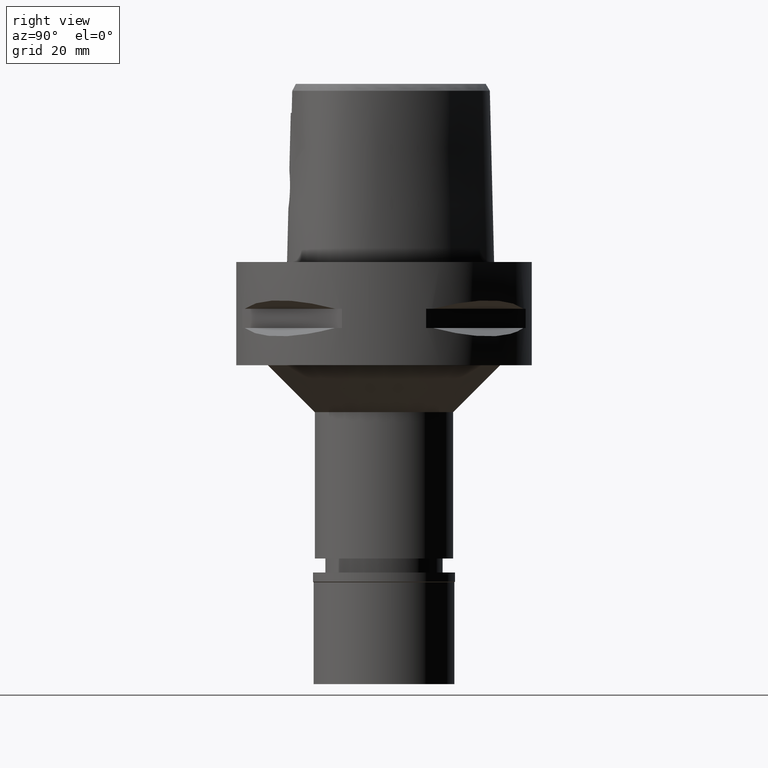
[diagram: clean part render]
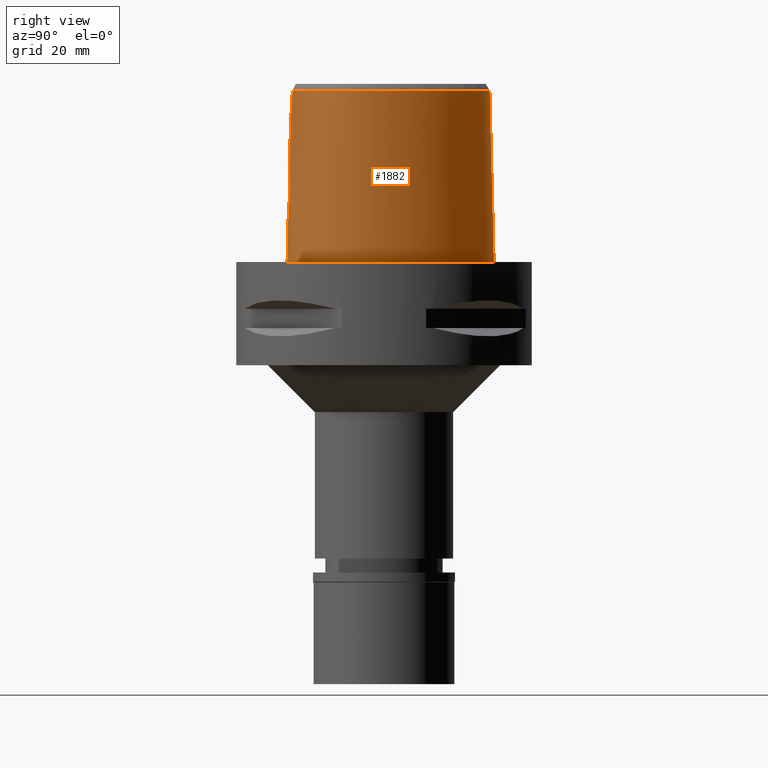
[diagram: same view with one face highlighted and labeled with its STEP entity id]
A machine part, right view. The second image highlights one B-rep face of the part: STEP entity #1882.
In plain terms, the highlighted face is a freeform B-spline surface patch.
Its self-contained STEP definition (entity closure, byte-faithful):
#4 = CARTESIAN_POINT ( 'NONE',  ( 3.204380528829199992, -20.20342866966900175, 13.01967623825819587 ) ) ;
#29 = CARTESIAN_POINT ( 'NONE',  ( 2.482490079998456167, -20.11938436469119651, 18.70275315662660276 ) ) ;
#35 = CARTESIAN_POINT ( 'NONE',  ( 2.438150600518000033, 22.68791637927999716, 24.59140306685000255 ) ) ;
#44 = CARTESIAN_POINT ( 'NONE',  ( -1.411580633884000040E-12, -20.38876923348000147, 11.44999999999999929 ) ) ;
#58 = CARTESIAN_POINT ( 'NONE',  ( 16.38077685470000233, -14.94316451347000019, 37.25232345770000109 ) ) ;
#71 = CARTESIAN_POINT ( 'NONE',  ( 3.772002913838033322, -20.04673383880903259, 16.97478929127804648 ) ) ;
#78 = CARTESIAN_POINT ( 'NONE',  ( 4.987110664503999757, 22.24795279833000095, 11.93048267600000223 ) ) ;
#92 = ORIENTED_EDGE ( 'NONE', *, *, #996, .F. ) ;
#93 = CARTESIAN_POINT ( 'NONE',  ( 3.276010424630875661, -20.07465546777150323, 17.88573059561239020 ) ) ;
#98 = CARTESIAN_POINT ( 'NONE',  ( 2.568271205958999825, 23.31126238477000001, -0.7304377148568999001 ) ) ;
#114 = CARTESIAN_POINT ( 'NONE',  ( 6.341471020853785667, -20.29812500914677642, -3.695627865145031943E-07 ) ) ;
#119 = CARTESIAN_POINT ( 'NONE',  ( 17.80867307355999785, 10.28184208128000066, 11.93048267600000223 ) ) ;
#140 = CARTESIAN_POINT ( 'NONE',  ( 14.40795639668043293, 15.64093750599779575, -3.695627865145031943E-07 ) ) ;
#144 = B_SPLINE_CURVE_WITH_KNOTS ( 'NONE', 3,
 ( #3553, #1573, #114, #1268, #2326, #4337, #896, #3852, #414, #971, #3288, #4386, #4782, #3636, #2848, #1772, #140, #1721, #4831, #2921, #2496, #4463, #1391 ),
 .UNSPECIFIED., .F., .F.,
 ( 4, 1, 1, 1, 1, 1, 1, 1, 1, 1, 1, 1, 1, 1, 1, 1, 1, 1, 1, 1, 4 ),
 ( 0.0000000000000000000, 0.08333333333344000726, 0.1666666666668000230, 0.2083333333333000081, 0.2500000000000000000, 0.2916666666666999919, 0.3125000000000000000, 0.3333333333333000081, 0.3541666666666999919, 0.3750000000000000000, 0.4166666666666000163, 0.4583333333332000326, 0.4999999999998999689, 0.5833333333332000326, 0.6666666666664999852, 0.7499999999998000488, 0.8333333333329999704, 0.8749999999997000177, 0.9166666666664000651, 0.9583333333329999704, 1.000000000000000000 ),
 .UNSPECIFIED. ) ;
#190 = CARTESIAN_POINT ( 'NONE',  ( -0.6718836833495001049, -20.05378849038999789, 24.59140306685000255 ) ) ;
#209 = CARTESIAN_POINT ( 'NONE',  ( -1.411580633884000040E-12, -20.38876923348000147, 11.44999999999999929 ) ) ;
#267 = B_SPLINE_CURVE_WITH_KNOTS ( 'NONE', 3,
 ( #1458, #499, #4378, #676 ),
 .UNSPECIFIED., .F., .F.,
 ( 4, 4 ),
 ( 0.0000000000000000000, 1.000000000000000000 ),
 .UNSPECIFIED. ) ;
#272 = CARTESIAN_POINT ( 'NONE',  ( 7.300578979384003020, -19.07170738130898613, 36.52186680739954028 ) ) ;
#304 = CARTESIAN_POINT ( 'NONE',  ( 1.886855603316999863, -20.71358919628000095, -0.7304377148568999001 ) ) ;
#314 = CARTESIAN_POINT ( 'NONE',  ( 4.467522181836240946, -19.48130276147388429, 36.52186680739954028 ) ) ;
#316 = EDGE_CURVE ( 'NONE', #1640, #482, #4794, .T. ) ;
#325 = CARTESIAN_POINT ( 'NONE',  ( 11.13012655322999933, -18.61140115403000195, 11.93048267600000223 ) ) ;
#339 = CARTESIAN_POINT ( 'NONE',  ( 17.90324024157425242, -13.53935104436231995, 36.52186680739954028 ) ) ;
#353 = DIRECTION ( 'NONE',  ( 2.016561690093959446E-12, 0.02499051290953949525, -0.9996876883629797206 ) ) ;
#370 = CARTESIAN_POINT ( 'NONE',  ( 4.000289648608512216, -20.07462390177899181, 14.85367509720603429 ) ) ;
#390 = CARTESIAN_POINT ( 'NONE',  ( 3.924098445672089319, -20.09318824069449505, 14.46358116592851850 ) ) ;
#399 = CARTESIAN_POINT ( 'NONE',  ( 18.08416038393999870, 10.44089487258000126, -0.7304377148568999001 ) ) ;
#414 = CARTESIAN_POINT ( 'NONE',  ( 20.34961799358084988, -11.74885742649931508, -3.695627865145031943E-07 ) ) ;
#422 = CARTESIAN_POINT ( 'NONE',  ( 10.14358067585999912, 18.45723408181999758, 37.25232345770000109 ) ) ;
#434 = CARTESIAN_POINT ( 'NONE',  ( 1.588457255229814180, -20.15839637585791877, 19.22566321224448416 ) ) ;
#443 = CARTESIAN_POINT ( 'NONE',  ( 19.54161170896999877, -11.28235477880000026, 37.25232345770000109 ) ) ;
#460 = CARTESIAN_POINT ( 'NONE',  ( 1.863557807161286828, -20.14821282482470011, 19.09641026843805278 ) ) ;
#467 = CARTESIAN_POINT ( 'NONE',  ( 16.97022731164999954, -15.69280483184000019, -0.7304377148568999001 ) ) ;
#482 = VERTEX_POINT ( 'NONE', #1934 ) ;
#489 = CARTESIAN_POINT ( 'NONE',  ( 21.99640701682000099, -0.2778990160719000402, -0.7304377148568999001 ) ) ;
#499 = CARTESIAN_POINT ( 'NONE',  ( 6.819703739716780851E-09, -19.98212988583101790, 27.71666688228259545 ) ) ;
#505 = CARTESIAN_POINT ( 'NONE',  ( 2.929828485618464207, -20.09487517444373594, 18.29630053273145052 ) ) ;
#535 = CARTESIAN_POINT ( 'NONE',  ( -0.6642815268289000707, 22.52377636018999851, 37.25232345770000109 ) ) ;
#562 = CARTESIAN_POINT ( 'NONE',  ( 0.5662264544665999155, 22.56729406896000256, 37.25232345770000109 ) ) ;
#592 = ORIENTED_EDGE ( 'NONE', *, *, #316, .F. ) ;
#639 = VECTOR ( 'NONE', #353, 1000.000000000000227 ) ;
#642 = CARTESIAN_POINT ( 'NONE',  ( 17.27359236348961247, 9.972912859139581698, 36.52186680739954028 ) ) ;
#676 = CARTESIAN_POINT ( 'NONE',  ( 0.0000000000000000000, -20.18628283968999781, 19.55000000000000071 ) ) ;
#698 = CARTESIAN_POINT ( 'NONE',  ( 14.52531262942999923, -16.95413747594999876, 11.93048267600000223 ) ) ;
#714 = CARTESIAN_POINT ( 'NONE',  ( 2.708222432252187062, -20.25839048008090160, 12.48843741727822376 ) ) ;
#740 = CARTESIAN_POINT ( 'NONE',  ( 2.751430606198253859, -20.25407344183640390, 12.52765276651590476 ) ) ;
#765 = CARTESIAN_POINT ( 'NONE',  ( 1.219179954272867628, -20.36299664601863668, 11.63727686740026002 ) ) ;
#776 = CARTESIAN_POINT ( 'NONE',  ( 21.57281239348000312, -9.001246195438000086, -0.7304377148568999001 ) ) ;
#801 = CARTESIAN_POINT ( 'NONE',  ( 7.259695423866000752, 20.78233562319000072, 24.59140306685000255 ) ) ;
#810 = VERTEX_POINT ( 'NONE', #2453 ) ;
#815 = CARTESIAN_POINT ( 'NONE',  ( 3.752221579586510813, -20.04764004981287329, 17.02426222420925228 ) ) ;
#826 = CARTESIAN_POINT ( 'NONE',  ( 18.58171406651000268, -14.18198046610999974, -0.7304377148568999001 ) ) ;
#841 = CARTESIAN_POINT ( 'NONE',  ( 0.0000000000000000000, -20.18628283968999781, 19.55000000000000071 ) ) ;
#844 = CARTESIAN_POINT ( 'NONE',  ( 3.793487456260480339, -20.04579046468114001, 16.91914858962802271 ) ) ;
#855 = CARTESIAN_POINT ( 'NONE',  ( 20.09084473359000000, -11.59945461460999994, 11.93048267600000223 ) ) ;
#873 = CARTESIAN_POINT ( 'NONE',  ( 3.865290333869318751, -20.04312016237826199, 16.71101165479720407 ) ) ;
#879 = ORIENTED_EDGE ( 'NONE', *, *, #1075, .T. ) ;
#880 = CARTESIAN_POINT ( 'NONE',  ( 21.94536977913000442, -4.102220499286000077, 11.93048267600000223 ) ) ;
#896 = CARTESIAN_POINT ( 'NONE',  ( 18.56841065814660396, -14.16937988918312996, -3.695627865145031943E-07 ) ) ;
#954 = CARTESIAN_POINT ( 'NONE',  ( 0.6155340740863999294, 23.51883497843000015, -0.7304377148568999001 ) ) ;
#971 = CARTESIAN_POINT ( 'NONE',  ( 20.93173253057206296, -10.60431641000839242, -3.695627865145031943E-07 ) ) ;
#977 = CARTESIAN_POINT ( 'NONE',  ( 0.5826623276731999201, 22.88447437210999880, 24.59140306685000255 ) ) ;
#996 = EDGE_CURVE ( 'NONE', #2681, #4719, #2357, .T. ) ;
#1029 = CARTESIAN_POINT ( 'NONE',  ( 20.09619608769159527, -10.23243839430229229, 36.52186680739954028 ) ) ;
#1050 = CARTESIAN_POINT ( 'NONE',  ( 10.91891095221053831, -18.03046396093136750, 36.52186680739954028 ) ) ;
#1075 = EDGE_CURVE ( 'NONE', #2276, #482, #144, .T. ) ;
#1079 = CARTESIAN_POINT ( 'NONE',  ( 6.344715576854000005, -20.31619965053999621, -0.7304377148568999001 ) ) ;
#1097 = CARTESIAN_POINT ( 'NONE',  ( 10.15538781006528701, 18.47129526702435953, 36.52186680739954028 ) ) ;
#1101 = CARTESIAN_POINT ( 'NONE',  ( 1.507678243694325237, -20.34923448701094983, 11.74107993125595861 ) ) ;
#1125 = CARTESIAN_POINT ( 'NONE',  ( 2.563992983004771187, -20.27228692714113478, 12.36410966514544185 ) ) ;
#1178 = CARTESIAN_POINT ( 'NONE',  ( 16.77374382599999691, -15.44292472572000108, 11.93048267600000223 ) ) ;
#1186 = CARTESIAN_POINT ( 'NONE',  ( -1.574539081985000086E-11, 22.56201468012000078, 36.52186680743999858 ) ) ;
#1192 = CARTESIAN_POINT ( 'NONE',  ( 2.787072456617037286, -20.10307282706192922, 18.44153223697248123 ) ) ;
#1201 = CARTESIAN_POINT ( 'NONE',  ( 17.25769845279999970, 9.963736498688000154, 37.25232345770000109 ) ) ;
#1224 = CARTESIAN_POINT ( 'NONE',  ( 20.16779732256000202, 4.447573638724000133, 24.59140306685000255 ) ) ;
#1243 = CARTESIAN_POINT ( 'NONE',  ( 0.0000000000000000000, -20.18628283968999781, 19.55000000000000071 ) ) ;
#1252 = CARTESIAN_POINT ( 'NONE',  ( 18.89485275315999857, -12.27684371510999917, 37.25232345770000109 ) ) ;
#1268 = CARTESIAN_POINT ( 'NONE',  ( 11.23259757045032536, -18.89324219622309187, -3.695627865145031943E-07 ) ) ;
#1300 = CARTESIAN_POINT ( 'NONE',  ( -0.4558512669279000118, 22.85344969972999607, 24.59140306685000255 ) ) ;
#1390 = EDGE_LOOP ( 'NONE', ( #592, #4781, #4047, #3269, #4688, #92, #2529, #879 ) ) ;
#1391 = CARTESIAN_POINT ( 'NONE',  ( 5.792621513459000158E-11, 23.47499999999000053, 1.460313351723999876E-13 ) ) ;
#1392 = CARTESIAN_POINT ( 'NONE',  ( 21.07429999882477745, -0.4408303635841203105, 36.52186680739954028 ) ) ;
#1426 = CARTESIAN_POINT ( 'NONE',  ( 3.035387624246396410, -20.22355932729745120, 12.81551075487858427 ) ) ;
#1451 = CARTESIAN_POINT ( 'NONE',  ( 4.047716646638882310, -20.05620397617477835, 15.36054662048689501 ) ) ;
#1458 = CARTESIAN_POINT ( 'NONE',  ( 2.041042029990999821E-08, -19.88004246002000031, 31.80000004972000127 ) ) ;
#1470 = CARTESIAN_POINT ( 'NONE',  ( 14.22011350745947134, -16.41829354688557530, 36.52186680739954028 ) ) ;
#1499 = CARTESIAN_POINT ( 'NONE',  ( 1.025649431176437920, -20.37072842225704150, 11.57971145393413259 ) ) ;
#1527 = CARTESIAN_POINT ( 'NONE',  ( 4.049374801663143231, -20.05444308311688317, 15.42240481850830847 ) ) ;
#1549 = CARTESIAN_POINT ( 'NONE',  ( 1.773269403376233067, -20.15175129702638657, 19.14226150414744154 ) ) ;
#1555 = CARTESIAN_POINT ( 'NONE',  ( 21.44619293463999909, -6.759806551089000415, 24.59140306685000255 ) ) ;
#1573 = CARTESIAN_POINT ( 'NONE',  ( 2.113823673616215260, -20.67500000923871895, -3.695627865145031943E-07 ) ) ;
#1581 = CARTESIAN_POINT ( 'NONE',  ( 19.81622822127999939, -11.44090469670999966, 24.59140306685000255 ) ) ;
#1595 = CARTESIAN_POINT ( 'NONE',  ( 3.016396958670749306, -20.08986764020522742, 18.20283621523593354 ) ) ;
#1604 = CARTESIAN_POINT ( 'NONE',  ( 13.69241970256000052, 15.03666384205000206, 37.25232345770000109 ) ) ;
#1621 = CARTESIAN_POINT ( 'NONE',  ( 3.140334829463161448, -20.08263654562674105, 18.05854662907350061 ) ) ;
#1627 = CARTESIAN_POINT ( 'NONE',  ( 2.503210903238000107, 22.99958938203000258, 11.93048267600000223 ) ) ;
#1640 = VERTEX_POINT ( 'NONE', #1186 ) ;
#1644 = CARTESIAN_POINT ( 'NONE',  ( 4.050986462135865551, -20.04628891732286178, 15.73876305543741871 ) ) ;
#1645 = B_SPLINE_CURVE_WITH_KNOTS ( 'NONE', 3,
 ( #3687, #4911, #1773, #3711, #3315, #1097, #4832, #642, #2244, #1392, #2923, #2952, #4464, #1029, #2178, #3733, #339, #4136, #1470, #1050, #272, #314, #1798 ),
 .UNSPECIFIED., .F., .F.,
 ( 4, 1, 1, 1, 1, 1, 1, 1, 1, 1, 1, 1, 1, 1, 1, 1, 1, 1, 1, 1, 4 ),
 ( 0.0000000000000000000, 0.04382683003322287996, 0.08765366006602488824, 0.1314804900989322289, 0.1753073201318395835, 0.2629609801974437389, 0.3506146402631531989, 0.4382683003288625478, 0.5259219603945720634, 0.5697487904274792792, 0.6135756204602813568, 0.6574024504930835455, 0.6793158655094845289, 0.7012292805259908723, 0.7231426955423918557, 0.7450561105587929500, 0.7888829405917002768, 0.8327097706246076037, 0.8765366006573045432, 0.9641902607230768973, 1.000000000000000000 ),
 .UNSPECIFIED. ) ;
#1652 = CARTESIAN_POINT ( 'NONE',  ( 21.68301100826999672, -0.3332744041582000327, 11.93048267600000223 ) ) ;
#1689 = CARTESIAN_POINT ( 'NONE',  ( -0.6840631436433000090, -20.68668116479000219, -0.7304377148568999001 ) ) ;
#1707 = EDGE_CURVE ( 'NONE', #3300, #4719, #267, .T. ) ;
#1715 = CARTESIAN_POINT ( 'NONE',  ( -0.6657939532027000729, -19.73734215318000196, 37.25232345770000109 ) ) ;
#1721 = CARTESIAN_POINT ( 'NONE',  ( 10.74572891656171336, 19.17433594461424207, -3.695627865145031943E-07 ) ) ;
#1737 = CARTESIAN_POINT ( 'NONE',  ( 2.041042029990999821E-08, -19.88004246002000031, 31.80000004972000127 ) ) ;
#1749 = CARTESIAN_POINT ( 'NONE',  ( 3.671249151389730514, -19.60525176641679579, 34.94790639287000289 ) ) ;
#1755 = CARTESIAN_POINT ( 'NONE',  ( -0.4431573376689000310, 22.53713866772000074, 37.25232345770000109 ) ) ;
#1772 = CARTESIAN_POINT ( 'NONE',  ( 18.06826689330550550, 10.43171875464764753, -3.695627865145031943E-07 ) ) ;
#1773 = CARTESIAN_POINT ( 'NONE',  ( 2.376843874104078491, 22.39422497744570251, 36.52186680739954028 ) ) ;
#1798 = CARTESIAN_POINT ( 'NONE',  ( 3.637738219117000238, -19.56971420299000286, 36.52185956443999970 ) ) ;
#1826 = CARTESIAN_POINT ( 'NONE',  ( 2.823170152635129604, -20.24664182289361491, 12.59615592242982451 ) ) ;
#1834 = CARTESIAN_POINT ( 'NONE',  ( 1.870063861553999951, -20.39691450309999610, 11.93048267600000223 ) ) ;
#1860 = CARTESIAN_POINT ( 'NONE',  ( 10.91263705401999928, -18.01320794013000182, 37.25232345770000109 ) ) ;
#1882 = ADVANCED_FACE ( 'NONE', ( #2967 ), #3590, .T. ) ;
#1902 = CARTESIAN_POINT ( 'NONE',  ( 4.018823746636533301, -20.06919759648031132, 14.98249420767734996 ) ) ;
#1921 = CARTESIAN_POINT ( 'NONE',  ( 0.8961612858878263976, -20.37502385350061118, 11.54820111910690272 ) ) ;
#1930 = CARTESIAN_POINT ( 'NONE',  ( 4.750826160643999430, 21.65775790853999894, 37.25232345770000109 ) ) ;
#1934 = CARTESIAN_POINT ( 'NONE',  ( 5.792621513459000158E-11, 23.47499999999000053, 1.460313351723999876E-13 ) ) ;
#1944 = CARTESIAN_POINT ( 'NONE',  ( 2.155005859199169649, -20.13578033466109929, 18.93159920171447652 ) ) ;
#1949 = CARTESIAN_POINT ( 'NONE',  ( 18.12052900991000115, -13.74516024498000100, 24.59140306685000255 ) ) ;
#1970 = CARTESIAN_POINT ( 'NONE',  ( 1.030684979669408197, -20.17735917126373124, 19.45771033557241836 ) ) ;
#1979 = CARTESIAN_POINT ( 'NONE',  ( 7.099337715496999657, 20.50831380296000006, 37.25232345770000109 ) ) ;
#2004 = CARTESIAN_POINT ( 'NONE',  ( 17.53318576318000055, 10.12278928999000094, 24.59140306685000255 ) ) ;
#2025 = CARTESIAN_POINT ( 'NONE',  ( 20.36546124588999973, -11.75800453251999933, -0.7304377148568999001 ) ) ;
#2041 = CARTESIAN_POINT ( 'NONE',  ( 4.027876458195112086, -20.04259836082617241, 15.99853063878556370 ) ) ;
#2049 = CARTESIAN_POINT ( 'NONE',  ( -0.4812391254461000356, 23.48607176374999739, -0.7304377148568999001 ) ) ;
#2060 = CARTESIAN_POINT ( 'NONE',  ( -0.6779734134963999459, -20.37023482759000004, 11.93048267600000223 ) ) ;
#2070 = CARTESIAN_POINT ( 'NONE',  ( 3.736696120837999402, -19.67778323291999953, 31.80000004972999861 ) ) ;
#2109 = LINE ( 'NONE', #209, #2761 ) ;
#2130 = CARTESIAN_POINT ( 'NONE',  ( 2.373090297797000314, 22.37624337653999973, 37.25232345770000109 ) ) ;
#2178 = CARTESIAN_POINT ( 'NONE',  ( 19.55745538000706674, -11.29150212657303420, 36.52186680739954028 ) ) ;
#2188 = EDGE_CURVE ( 'NONE', #3648, #810, #2425, .T. ) ;
#2201 = CARTESIAN_POINT ( 'NONE',  ( 2.837485425283537310, -20.24513424342024592, 12.61014246045367848 ) ) ;
#2208 = CARTESIAN_POINT ( 'NONE',  ( -0.4479923888690999778, -20.05810137178000119, 24.59140306685000255 ) ) ;
#2222 = CARTESIAN_POINT ( 'NONE',  ( 2.845902105409431115, -20.24424239507283119, 12.61843622276508903 ) ) ;
#2226 = CARTESIAN_POINT ( 'NONE',  ( 14.36818028723000040, -16.67825722082999818, 24.59140306685000255 ) ) ;
#2244 = CARTESIAN_POINT ( 'NONE',  ( 19.88562079789167569, 4.345879946636557634, 36.52186680739954028 ) ) ;
#2248 = CARTESIAN_POINT ( 'NONE',  ( 3.639357803055529139, -20.14267766719875397, 13.72083170492317450 ) ) ;
#2270 = CARTESIAN_POINT ( 'NONE',  ( 3.499174278533642823, -20.16361957183535480, 13.45649594151407769 ) ) ;
#2276 = VERTEX_POINT ( 'NONE', #2875 ) ;
#2300 = CARTESIAN_POINT ( 'NONE',  ( 2.277040341257651868, -20.29744685901387058, 12.14813090686118002 ) ) ;
#2310 = CARTESIAN_POINT ( 'NONE',  ( 21.05621899115999796, -0.4440251803306000111, 37.25232345770000109 ) ) ;
#2326 = CARTESIAN_POINT ( 'NONE',  ( 14.67337964878196388, -17.21410157054869927, -3.695627865145031943E-07 ) ) ;
#2334 = CARTESIAN_POINT ( 'NONE',  ( 19.66427014697999809, -12.83600704725999897, -0.7304377148568999001 ) ) ;
#2349 = CARTESIAN_POINT ( 'NONE',  ( 1.680727858777808725, -20.15513037352192782, 19.18494405846475814 ) ) ;
#2356 = CARTESIAN_POINT ( 'NONE',  ( 18.35112153820999836, -13.96357035553999992, 11.93048267600000223 ) ) ;
#2357 = B_SPLINE_CURVE_WITH_KNOTS ( 'NONE', 3,
 ( #3004, #2577, #4516, #1921, #1499, #765, #4940, #3032, #2649, #1101, #2984, #4565, #2626, #3736, #2300, #2600, #1125, #4141, #714, #740, #4915, #1826, #2201, #2222, #3759, #1426, #4, #3458, #3827, #2270, #3391, #2248, #4540, #3801, #3780, #3367, #390, #370, #1902, #4492, #3434, #1451, #1527, #4313, #1644, #2041, #2776, #4635, #873, #2422, #844, #71, #3945, #2401, #815, #4682, #3183, #3899, #93, #1621, #4608, #1595, #3132, #505, #3922, #4285, #2801, #1192, #2726, #29, #4261, #1944, #3874, #460, #1549, #2349, #3155, #434, #1970, #2376, #1243 ),
 .UNSPECIFIED., .F., .F.,
 ( 4, 2, 2, 1, 1, 1, 2, 2, 2, 2, 2, 1, 1, 2, 2, 2, 2, 2, 1, 2, 2, 2, 2, 1, 2, 2, 2, 2, 1, 1, 1, 2, 2, 2, 2, 2, 1, 1, 2, 2, 2, 2, 2, 1, 2, 2, 4 ),
 ( 0.0000000000000000000, 0.06249999999999863998, 0.09374999999999794609, 0.1093749999999976269, 0.1171874999999974465, 0.1210937499999973771, 0.1230468749999972661, 0.1249999999999971551, 0.1874999999999900357, 0.2187499999999863720, 0.2343749999999845401, 0.2421874999999835965, 0.2460937499999830413, 0.2480468749999829026, 0.2499999999999827360, 0.2812499999999782396, 0.3124999999999736877, 0.3437499999999690803, 0.3593749999999668598, 0.3671874999999655831, 0.3749999999999643063, 0.4374999999999540923, 0.4687499999999488742, 0.4843749999999465428, 0.4921874999999455991, 0.4999999999999446554, 0.5624999999999357181, 0.5937499999999308331, 0.6093749999999283906, 0.6171874999999271694, 0.6210937499999261702, 0.6230468749999260591, 0.6249999999999259481, 0.6874999999999292788, 0.7187499999999310552, 0.7343749999999319433, 0.7421874999999321654, 0.7460937499999321654, 0.7480468749999320544, 0.7499999999999320544, 0.7812499999999402700, 0.8124999999999484857, 0.8437499999999567013, 0.8593749999999608091, 0.8671874999999628075, 0.8749999999999649170, 1.000000000000000000 ),
 .UNSPECIFIED. ) ;
#2376 = CARTESIAN_POINT ( 'NONE',  ( 0.4958796301851183252, -20.18628283969000137, 19.54999999999999361 ) ) ;
#2383 = CARTESIAN_POINT ( 'NONE',  ( 7.580410840603000189, 21.33037926365999937, -0.7304377148568999001 ) ) ;
#2401 = CARTESIAN_POINT ( 'NONE',  ( 3.756202278739499967, -20.04745491813396185, 17.01443631402966616 ) ) ;
#2408 = CARTESIAN_POINT ( 'NONE',  ( 19.86834420885999819, 4.339653630937999829, 37.25232345770000109 ) ) ;
#2422 = CARTESIAN_POINT ( 'NONE',  ( 3.834213987526132517, -20.04413714087355558, 16.80742482761877454 ) ) ;
#2425 = B_SPLINE_CURVE_WITH_KNOTS ( 'NONE', 3,
 ( #2070, #3555, #1749, #2473 ),
 .UNSPECIFIED., .F., .F.,
 ( 4, 4 ),
 ( 0.0000000000000000000, 1.000000000000000000 ),
 .UNSPECIFIED. ) ;
#2453 = CARTESIAN_POINT ( 'NONE',  ( 3.637738219117000238, -19.56971420299000286, 36.52185956443999970 ) ) ;
#2460 = EDGE_CURVE ( 'NONE', #1640, #810, #1645, .T. ) ;
#2473 = CARTESIAN_POINT ( 'NONE',  ( 3.637738219117000238, -19.56971420299000286, 36.52185956443999970 ) ) ;
#2478 = CARTESIAN_POINT ( 'NONE',  ( -0.6834384061606999516, 22.83968690273999869, 24.59140306685000255 ) ) ;
#2496 = CARTESIAN_POINT ( 'NONE',  ( 2.564517728854929679, 23.29328125909403724, -3.695627865145031943E-07 ) ) ;
#2529 = ORIENTED_EDGE ( 'NONE', *, *, #3856, .T. ) ;
#2534 = CARTESIAN_POINT ( 'NONE',  ( 2.503154195450925545, -19.81241979350620142, 31.80000012137768195 ) ) ;
#2560 = CARTESIAN_POINT ( 'NONE',  ( 1.251533272180794798, -19.88005341395052028, 31.80000012137768195 ) ) ;
#2577 = CARTESIAN_POINT ( 'NONE',  ( 0.2511922473388588095, -20.38876923348000503, 11.44999999999999751 ) ) ;
#2586 = CARTESIAN_POINT ( 'NONE',  ( -0.4561077449845000187, -20.69106755708000023, -0.7304377148568999001 ) ) ;
#2600 = CARTESIAN_POINT ( 'NONE',  ( 2.391339012708114886, -20.28790947871431527, 12.22807846016628197 ) ) ;
#2607 = CARTESIAN_POINT ( 'NONE',  ( 6.175998579484999418, -19.37631782256999813, 37.25232345770000109 ) ) ;
#2626 = CARTESIAN_POINT ( 'NONE',  ( 1.730243616055272549, -20.33723487376844830, 11.83240198453884062 ) ) ;
#2649 = CARTESIAN_POINT ( 'NONE',  ( 1.483769449621453740, -20.35049291413308126, 11.73151974823183785 ) ) ;
#2681 = VERTEX_POINT ( 'NONE', #44 ) ;
#2684 = CARTESIAN_POINT ( 'NONE',  ( 19.15132521777000107, -12.46323149250000029, 24.59140306685000255 ) ) ;
#2711 = CARTESIAN_POINT ( 'NONE',  ( 20.76670354996999990, 4.663413654294999766, -0.7304377148568999001 ) ) ;
#2726 = CARTESIAN_POINT ( 'NONE',  ( 2.688366482111071765, -20.10849269295275477, 18.53200765787854465 ) ) ;
#2733 = CARTESIAN_POINT ( 'NONE',  ( 14.42198652069999909, 15.65278600309999746, -0.7304377148568999001 ) ) ;
#2754 = CARTESIAN_POINT ( 'NONE',  ( 20.96392243625000162, -8.820258295239000290, 24.59140306685000255 ) ) ;
#2761 = VECTOR ( 'NONE', #3675, 1000.000000000000114 ) ;
#2776 = CARTESIAN_POINT ( 'NONE',  ( 3.953684593737095909, -20.04133085884832965, 16.38788148044573845 ) ) ;
#2782 = CARTESIAN_POINT ( 'NONE',  ( 20.65947745764000132, -8.729764345138999460, 37.25232345770000109 ) ) ;
#2801 = CARTESIAN_POINT ( 'NONE',  ( 2.886936983608022089, -20.09734181265495323, 18.34045149845873368 ) ) ;
#2827 = CARTESIAN_POINT ( 'NONE',  ( -0.7217521648240999843, 23.47150798783999903, -0.7304377148568999001 ) ) ;
#2848 = CARTESIAN_POINT ( 'NONE',  ( 20.74942741753580933, 4.657187503149761376, -3.695627865145031943E-07 ) ) ;
#2875 = CARTESIAN_POINT ( 'NONE',  ( -1.131693947722000185E-11, -20.67499999999999716, 1.488068927338999721E-13 ) ) ;
#2921 = CARTESIAN_POINT ( 'NONE',  ( 5.098437020732680125, 22.52602539924386349, -3.695627865145031943E-07 ) ) ;
#2923 = CARTESIAN_POINT ( 'NONE',  ( 21.32871516739562168, -4.105831245034388566, 36.52186680739954028 ) ) ;
#2952 = CARTESIAN_POINT ( 'NONE',  ( 21.14970177531558093, -6.717195943319610230, 36.52186680739954028 ) ) ;
#2967 = FACE_OUTER_BOUND ( 'NONE', #1390, .T. ) ;
#2970 = B_SPLINE_CURVE_WITH_KNOTS ( 'NONE', 3,
 ( #4042, #2534, #2560, #1737 ),
 .UNSPECIFIED., .F., .F.,
 ( 4, 4 ),
 ( 0.0000000000000000000, 1.000000000000000000 ),
 .UNSPECIFIED. ) ;
#2984 = CARTESIAN_POINT ( 'NONE',  ( 1.523607870227056349, -20.34838882398486959, 11.74750845070930083 ) ) ;
#2990 = CARTESIAN_POINT ( 'NONE',  ( 6.232237578608000206, -19.68961176523000134, 24.59140306685000255 ) ) ;
#2991 = CARTESIAN_POINT ( 'NONE',  ( 3.736696120837999402, -19.67778323291999953, 31.80000004972999861 ) ) ;
#3004 = CARTESIAN_POINT ( 'NONE',  ( -1.411580633884000040E-12, -20.38876923348000147, 11.44999999999999929 ) ) ;
#3032 = CARTESIAN_POINT ( 'NONE',  ( 1.427886038454017514, -20.35335877216590106, 11.70978999892203376 ) ) ;
#3088 = CARTESIAN_POINT ( 'NONE',  ( 17.88993648161000038, -13.52675013440999940, 37.25232345770000109 ) ) ;
#3095 = CARTESIAN_POINT ( 'NONE',  ( 2.041042029990999821E-08, -19.88004246002000031, 31.80000004972000127 ) ) ;
#3114 = CARTESIAN_POINT ( 'NONE',  ( 20.94844325947000030, -10.61175397034000056, -0.7304377148568999001 ) ) ;
#3132 = CARTESIAN_POINT ( 'NONE',  ( 2.977315932035571322, -20.09213487671548748, 18.24605156800315342 ) ) ;
#3139 = CARTESIAN_POINT ( 'NONE',  ( 20.65879047869000118, -10.48283619270000067, 11.93048267600000223 ) ) ;
#3155 = CARTESIAN_POINT ( 'NONE',  ( 1.618547894838997747, -20.15734766991758775, 19.21267579535282977 ) ) ;
#3163 = CARTESIAN_POINT ( 'NONE',  ( 16.57726034035000140, -15.19304461959999841, 24.59140306685000255 ) ) ;
#3183 = CARTESIAN_POINT ( 'NONE',  ( 3.567359498357086434, -20.05743396805134182, 17.43556607240069667 ) ) ;
#3189 = CARTESIAN_POINT ( 'NONE',  ( 13.93560864194000004, 15.24203789574000112, 24.59140306685000255 ) ) ;
#3269 = ORIENTED_EDGE ( 'NONE', *, *, #3466, .T. ) ;
#3288 = CARTESIAN_POINT ( 'NONE',  ( 21.55524826898462010, -8.996025393266046777, -3.695627865145031943E-07 ) ) ;
#3300 = VERTEX_POINT ( 'NONE', #3095 ) ;
#3315 = CARTESIAN_POINT ( 'NONE',  ( 7.108589361577147159, 20.52412316394920566, 36.52186680739954028 ) ) ;
#3367 = CARTESIAN_POINT ( 'NONE',  ( 3.845759704931128731, -20.10861169733077958, 14.19853366285087404 ) ) ;
#3391 = CARTESIAN_POINT ( 'NONE',  ( 3.593923021716097121, -20.14958406648708333, 13.63167864618288938 ) ) ;
#3398 = CARTESIAN_POINT ( 'NONE',  ( 1.836480378028999993, -19.76356511675999883, 37.25232345770000109 ) ) ;
#3434 = CARTESIAN_POINT ( 'NONE',  ( 4.044153647498148985, -20.05898815470032304, 15.26732057924916752 ) ) ;
#3458 = CARTESIAN_POINT ( 'NONE',  ( 3.285060280370803998, -20.19317529434252023, 13.12768545366438389 ) ) ;
#3465 = CARTESIAN_POINT ( 'NONE',  ( 22.07548129198999831, -6.850245535611000136, -0.7304377148568999001 ) ) ;
#3466 = EDGE_CURVE ( 'NONE', #3648, #3300, #2970, .T. ) ;
#3490 = CARTESIAN_POINT ( 'NONE',  ( 19.40779768237000269, -12.64961926987999874, 11.93048267600000223 ) ) ;
#3512 = CARTESIAN_POINT ( 'NONE',  ( 5.105252916433999921, 22.54305024322000151, -0.7304377148568999001 ) ) ;
#3538 = CARTESIAN_POINT ( 'NONE',  ( 4.868968412573999593, 21.95285535342999950, 24.59140306685000255 ) ) ;
#3553 = CARTESIAN_POINT ( 'NONE',  ( -1.131693947722000185E-11, -20.67499999999999716, 1.488068927338999721E-13 ) ) ;
#3555 = CARTESIAN_POINT ( 'NONE',  ( 3.704239288984441103, -19.64128042389065598, 33.37395322129999897 ) ) ;
#3560 = CARTESIAN_POINT ( 'NONE',  ( 21.31039820484999936, -4.105938497770999618, 37.25232345770000109 ) ) ;
#3590 = B_SPLINE_SURFACE_WITH_KNOTS ( 'NONE', 3, 3, ( 
 ( #1689, #2060, #190, #1715 ),
 ( #2586, #4502, #2208, #3742 ),
 ( #304, #1834, #4897, #3398 ),
 ( #1079, #4149, #2990, #2607 ),
 ( #3765, #325, #4920, #1860 ),
 ( #4523, #698, #2226, #4269 ),
 ( #467, #1178, #3163, #58 ),
 ( #826, #2356, #1949, #3088 ),
 ( #2334, #3490, #2684, #1252 ),
 ( #2025, #855, #1581, #443 ),
 ( #3114, #3139, #4220, #4641 ),
 ( #776, #4691, #2754, #2782 ),
 ( #3465, #4619, #1555, #3858 ),
 ( #4292, #880, #4665, #3560 ),
 ( #489, #1652, #4716, #2310 ),
 ( #2711, #3929, #1224, #2408 ),
 ( #399, #119, #2004, #1201 ),
 ( #2733, #3834, #3189, #1604 ),
 ( #4246, #4320, #3880, #422 ),
 ( #2383, #3905, #801, #1979 ),
 ( #3512, #78, #3538, #1930 ),
 ( #98, #1627, #35, #2130 ),
 ( #954, #4740, #977, #562 ),
 ( #2049, #4034, #1300, #1755 ),
 ( #2827, #4393, #2478, #535 ) ),
 .UNSPECIFIED., .F., .F., .F.,
 ( 4, 1, 1, 1, 1, 1, 1, 1, 1, 1, 1, 1, 1, 1, 1, 1, 1, 1, 1, 1, 1, 1, 4 ),
 ( 4, 4 ),
 ( -0.008985960173604000401, 0.0000000000000000000, 0.08333333333344000726, 0.1666666666668000230, 0.2083333333333000081, 0.2500000000000000000, 0.2916666666666999919, 0.3125000000000000000, 0.3333333333333000081, 0.3541666666666999919, 0.3750000000000000000, 0.4166666666666000163, 0.4583333333332000326, 0.4999999999998999689, 0.5833333333332000326, 0.6666666666664999852, 0.7499999999998000488, 0.8333333333329999704, 0.8749999999997000177, 0.9166666666664000651, 0.9583333333329999704, 1.000000000000000000, 1.011710456763000199 ),
 ( 2.747276364734000106E-10, 0.9999999859888999421 ),
 .UNSPECIFIED. ) ;
#3636 = CARTESIAN_POINT ( 'NONE',  ( 21.97832648701299618, -0.2810937483835885820, -3.695627865145031943E-07 ) ) ;
#3648 = VERTEX_POINT ( 'NONE', #2991 ) ;
#3675 = DIRECTION ( 'NONE',  ( -8.648266624004811992E-13, -0.02499051295360945474, -0.9996876883618780463 ) ) ;
#3687 = CARTESIAN_POINT ( 'NONE',  ( -1.574539081985000086E-11, 22.56201468012000078, 36.52186680743999858 ) ) ;
#3711 = CARTESIAN_POINT ( 'NONE',  ( 4.757642236485223997, 21.67478320247222356, 36.52186680739954028 ) ) ;
#3733 = CARTESIAN_POINT ( 'NONE',  ( 18.90964962507846181, -12.28759713487144900, 36.52186680739954028 ) ) ;
#3736 = CARTESIAN_POINT ( 'NONE',  ( 1.942252835742974915, -20.32342603766479527, 11.93630662723845504 ) ) ;
#3742 = CARTESIAN_POINT ( 'NONE',  ( -0.4439347108112999263, -19.74161827912999811, 37.25232345770000109 ) ) ;
#3759 = CARTESIAN_POINT ( 'NONE',  ( 2.945877055956071189, -20.23360012078240899, 12.71757858910470596 ) ) ;
#3765 = CARTESIAN_POINT ( 'NONE',  ( 11.23887130283000069, -18.91049776096999580, -0.7304377148568999001 ) ) ;
#3780 = CARTESIAN_POINT ( 'NONE',  ( 3.721953356472182506, -20.12939122057580121, 13.90286766790388739 ) ) ;
#3801 = CARTESIAN_POINT ( 'NONE',  ( 3.709242696170376163, -20.13148250297794917, 13.87360811411493344 ) ) ;
#3827 = CARTESIAN_POINT ( 'NONE',  ( 3.430835585058534587, -20.17327351776298983, 13.34387742910530861 ) ) ;
#3834 = CARTESIAN_POINT ( 'NONE',  ( 14.17879758131999957, 15.44741194941999929, 11.93048267600000223 ) ) ;
#3837 = CARTESIAN_POINT ( 'NONE',  ( -1.574539081985000086E-11, 22.56201468012000078, 36.52186680743999858 ) ) ;
#3852 = CARTESIAN_POINT ( 'NONE',  ( 19.64947366612337376, -12.82525391169783191, -3.695627865145031943E-07 ) ) ;
#3856 = EDGE_CURVE ( 'NONE', #2681, #2276, #2109, .T. ) ;
#3858 = CARTESIAN_POINT ( 'NONE',  ( 21.13154875596999815, -6.714587058829000199, 37.25232345770000109 ) ) ;
#3874 = CARTESIAN_POINT ( 'NONE',  ( 2.040965373426560259, -20.14092335281309687, 19.00071684412028361 ) ) ;
#3880 = CARTESIAN_POINT ( 'NONE',  ( 10.34823236347999931, 18.70095497395000095, 24.59140306685000255 ) ) ;
#3899 = CARTESIAN_POINT ( 'NONE',  ( 3.355808716267110192, -20.06991494556712752, 17.77124201982361740 ) ) ;
#3905 = CARTESIAN_POINT ( 'NONE',  ( 7.420053132233999982, 21.05635744342999871, 11.93048267600000223 ) ) ;
#3922 = CARTESIAN_POINT ( 'NONE',  ( 2.909066446494649405, -20.09606998528431987, 18.31778852327269291 ) ) ;
#3929 = CARTESIAN_POINT ( 'NONE',  ( 20.46725043626999962, 4.555493646508999461, 11.93048267600000223 ) ) ;
#3945 = CARTESIAN_POINT ( 'NONE',  ( 3.762554635476655474, -20.04716315176901631, 16.99858450649693964 ) ) ;
#4034 = CARTESIAN_POINT ( 'NONE',  ( -0.4685451961869999682, 23.16976073173999850, 11.93048267600000223 ) ) ;
#4042 = CARTESIAN_POINT ( 'NONE',  ( 3.736696120837999402, -19.67778323291999953, 31.80000004972999861 ) ) ;
#4047 = ORIENTED_EDGE ( 'NONE', *, *, #2188, .F. ) ;
#4136 = CARTESIAN_POINT ( 'NONE',  ( 16.39211273426773019, -14.95758104715519998, 36.52186680739954028 ) ) ;
#4141 = CARTESIAN_POINT ( 'NONE',  ( 2.621738039107880613, -20.26685999642942093, 12.41213643709602366 ) ) ;
#4149 = CARTESIAN_POINT ( 'NONE',  ( 6.288476577730999217, -20.00290570788000011, 11.93048267600000223 ) ) ;
#4220 = CARTESIAN_POINT ( 'NONE',  ( 20.36913769790999851, -10.35391841504999988, 24.59140306685000255 ) ) ;
#4246 = CARTESIAN_POINT ( 'NONE',  ( 10.75753573871999969, 19.18839675819999968, -0.7304377148568999001 ) ) ;
#4261 = CARTESIAN_POINT ( 'NONE',  ( 2.373880267848261116, -20.12492755806854206, 18.78399388067499842 ) ) ;
#4269 = CARTESIAN_POINT ( 'NONE',  ( 14.21104794502000068, -16.40237696572000203, 37.25232345770000109 ) ) ;
#4285 = CARTESIAN_POINT ( 'NONE',  ( 2.895133407865972952, -20.09687105862881040, 18.33210209961905335 ) ) ;
#4292 = CARTESIAN_POINT ( 'NONE',  ( 22.26285556627000162, -4.100361500044000351, -0.7304377148568999001 ) ) ;
#4313 = CARTESIAN_POINT ( 'NONE',  ( 4.049840313399595715, -20.05364204295706188, 15.45194745475150100 ) ) ;
#4320 = CARTESIAN_POINT ( 'NONE',  ( 10.55288405109999950, 18.94467586606999632, 11.93048267600000223 ) ) ;
#4337 = CARTESIAN_POINT ( 'NONE',  ( 16.95889173167462971, -15.67838867916535683, -3.695627865145031943E-07 ) ) ;
#4378 = CARTESIAN_POINT ( 'NONE',  ( 6.839673333996343595E-09, -20.08420636275916138, 23.63333344114142065 ) ) ;
#4386 = CARTESIAN_POINT ( 'NONE',  ( 22.05732875240480340, -6.847636720069713689, -3.695627865145031943E-07 ) ) ;
#4393 = CARTESIAN_POINT ( 'NONE',  ( -0.7025952854924000235, 23.15559744528999886, 11.93048267600000223 ) ) ;
#4463 = CARTESIAN_POINT ( 'NONE',  ( 0.8548392429631619382, 23.47500000924453190, -3.695627865145031943E-07 ) ) ;
#4464 = CARTESIAN_POINT ( 'NONE',  ( 20.67704204634375387, -8.734985285293577206, 36.52186680739954028 ) ) ;
#4492 = CARTESIAN_POINT ( 'NONE',  ( 4.037268869101358959, -20.06220085004203568, 15.17285444143418260 ) ) ;
#4502 = CARTESIAN_POINT ( 'NONE',  ( -0.4520500669267999982, -20.37458446443000426, 11.93048267600000223 ) ) ;
#4516 = CARTESIAN_POINT ( 'NONE',  ( 0.5084947904272035801, -20.38533288848515568, 11.47343684645123396 ) ) ;
#4523 = CARTESIAN_POINT ( 'NONE',  ( 14.68244497162999984, -17.23001773106000201, -0.7304377148568999001 ) ) ;
#4540 = CARTESIAN_POINT ( 'NONE',  ( 3.681710925298524728, -20.13593829798910662, 13.81220954852103588 ) ) ;
#4565 = CARTESIAN_POINT ( 'NONE',  ( 1.533562918248703166, -20.34785491290973880, 11.75157015572830410 ) ) ;
#4608 = CARTESIAN_POINT ( 'NONE',  ( 3.092448578919904101, -20.08544195400326871, 18.11632541198765267 ) ) ;
#4619 = CARTESIAN_POINT ( 'NONE',  ( 21.76083711332000092, -6.805026043350000720, 11.93048267600000223 ) ) ;
#4635 = CARTESIAN_POINT ( 'NONE',  ( 3.922379995253982621, -20.04161974698358506, 16.51759989458747668 ) ) ;
#4641 = CARTESIAN_POINT ( 'NONE',  ( 20.07948491714000028, -10.22500063740000087, 37.25232345770000109 ) ) ;
#4665 = CARTESIAN_POINT ( 'NONE',  ( 21.62788399198999656, -4.104079498527999803, 24.59140306685000255 ) ) ;
#4682 = CARTESIAN_POINT ( 'NONE',  ( 3.671307867461152785, -20.05143410183728037, 17.22253291972485556 ) ) ;
#4688 = ORIENTED_EDGE ( 'NONE', *, *, #1707, .T. ) ;
#4691 = CARTESIAN_POINT ( 'NONE',  ( 21.26836741486000193, -8.910752245338999344, 11.93048267600000223 ) ) ;
#4716 = CARTESIAN_POINT ( 'NONE',  ( 21.36961499971999956, -0.3886497922443999942, 24.59140306685000255 ) ) ;
#4719 = VERTEX_POINT ( 'NONE', #841 ) ;
#4740 = CARTESIAN_POINT ( 'NONE',  ( 0.5990982008798000358, 23.20165467526999947, 11.93048267600000223 ) ) ;
#4781 = ORIENTED_EDGE ( 'NONE', *, *, #2460, .T. ) ;
#4782 = CARTESIAN_POINT ( 'NONE',  ( 22.24453908781756795, -4.100468749946007740, -3.695627865145031943E-07 ) ) ;
#4794 = LINE ( 'NONE', #3837, #639 ) ;
#4831 = CARTESIAN_POINT ( 'NONE',  ( 7.571159439031669436, 21.31457032049137013, -3.695627865145031943E-07 ) ) ;
#4832 = CARTESIAN_POINT ( 'NONE',  ( 13.70645019738705983, 15.04851265230121271, 36.52186680739954028 ) ) ;
#4897 = CARTESIAN_POINT ( 'NONE',  ( 1.853272119791999906, -20.08023980993000279, 24.59140306685000255 ) ) ;
#4911 = CARTESIAN_POINT ( 'NONE',  ( 0.7901461619525286251, 22.56201467849879094, 36.52186680739954028 ) ) ;
#4915 = CARTESIAN_POINT ( 'NONE',  ( 2.801680166699845209, -20.24889290709488776, 12.57531498607663956 ) ) ;
#4920 = CARTESIAN_POINT ( 'NONE',  ( 11.02138180362000064, -18.31230454708000011, 24.59140306685000255 ) ) ;
#4940 = CARTESIAN_POINT ( 'NONE',  ( 1.315768082957364582, -20.35880860055615571, 11.66863287300322760 ) ) ;